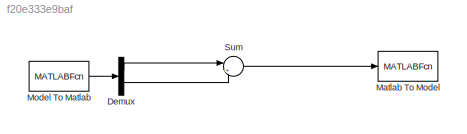
MODEL slx_f20e333e9baf
KIND model
BLOCK [Demux] Demux
  DisplayOption = bar
  Outputs = 2
  Ports = [1, 2]
BLOCK [MATLABFcn] Matlab To Model
  MATLABFcn = matoutp
  Ports = [1, 1]
  StartFcn = evalin('base','fidout = fopen(''sub1_out'',''w'');');\n%fprintf(evalin('base','fidout'),'0\n0\n0\n');
  StopFcn = evalin('base','fclose(fidout);');
BLOCK [MATLABFcn] Model To Matlab
  MATLABFcn = matinp
  OutputDimensions = 2
  Ports = [1, 1]
  StartFcn = evalin('base','fidin = fopen(''sub1_inp'',''r'');');
  StopFcn = evalin('base','fclose(fidin);');
BLOCK [Sum] Sum
  IconShape = round
  InputSameDT = off
  Inputs = |+-
  OutDataTypeStr = Inherit: Inherit via internal rule
  Ports = [2, 1]
  SaturateOnIntegerOverflow = off
LINE Demux:1 -> Sum:1
LINE Demux:2 -> Sum:2
LINE Model To Matlab:1 -> Demux:1
LINE Sum:1 -> Matlab To Model:1
